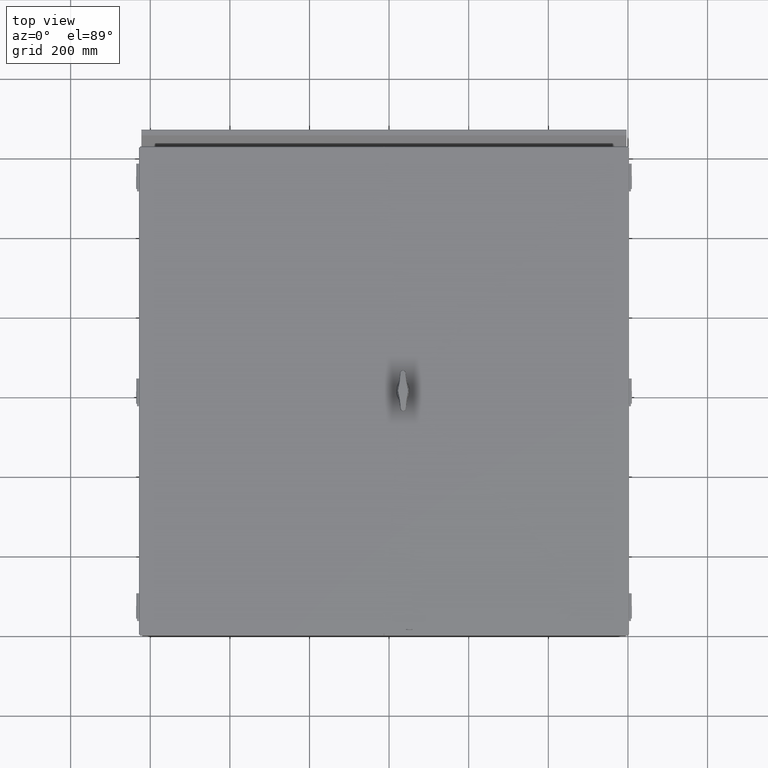
[diagram: clean part render]
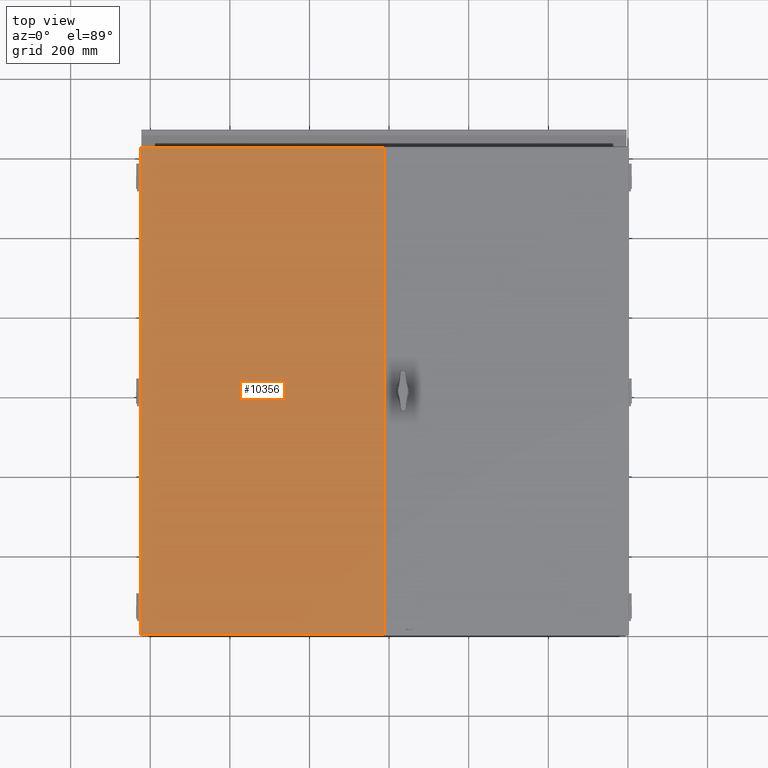
[diagram: same view with one face highlighted and labeled with its STEP entity id]
A machine part, top view. The second image highlights one B-rep face of the part: STEP entity #10356.
In plain terms, the highlighted planar face has unit normal (0, -0, 1).
Its self-contained STEP definition (entity closure, byte-faithful):
#974=PLANE($,#11150);
#1418=FACE_OUTER_BOUND($,#2076,.T.);
#2076=EDGE_LOOP($,(#7802,#7803,#7804,#7805));
#3349=LINE($,#15948,#4145);
#3365=LINE($,#16026,#4161);
#3381=LINE($,#16096,#4177);
#3394=LINE($,#16183,#4190);
#4145=VECTOR($,#12787,24.0938);
#4161=VECTOR($,#12821,24.0938);
#4177=VECTOR($,#12857,48.1251);
#4190=VECTOR($,#12884,48.1251);
#4899=VERTEX_POINT($,#15945);
#4900=VERTEX_POINT($,#15947);
#4911=VERTEX_POINT($,#16017);
#4912=VERTEX_POINT($,#16025);
#5939=EDGE_CURVE($,#4900,#4899,#3349,.T.);
#5959=EDGE_CURVE($,#4912,#4911,#3365,.T.);
#5979=EDGE_CURVE($,#4911,#4900,#3381,.T.);
#5995=EDGE_CURVE($,#4912,#4899,#3394,.T.);
#7802=ORIENTED_EDGE($,*,*,#5939,.T.);
#7803=ORIENTED_EDGE($,*,*,#5995,.F.);
#7804=ORIENTED_EDGE($,*,*,#5959,.T.);
#7805=ORIENTED_EDGE($,*,*,#5979,.T.);
#10356=ADVANCED_FACE($,(#1418),#974,.T.);
#11150=AXIS2_PLACEMENT_3D($,#16182,#12882,#12883);
#12787=DIRECTION($,(1.,2.32210140825624E-016,0.));
#12821=DIRECTION($,(-1.,-1.16105070412812E-016,0.));
#12857=DIRECTION($,(-5.81279279526111E-017,-1.,0.));
#12882=DIRECTION('center_axis',(0.,0.,1.));
#12883=DIRECTION('ref_axis',(1.,0.,0.));
#12884=DIRECTION($,(5.78276453852652E-017,-1.,0.));
#15945=CARTESIAN_POINT('',(12.109375,-24.06255,0.0937));
#15947=CARTESIAN_POINT('',(-11.984425,-24.06255,0.0937));
#15948=CARTESIAN_POINT($,(-5.9922125,-24.06255,0.0937));
#16017=CARTESIAN_POINT('',(-11.984425,24.06255,0.0937));
#16025=CARTESIAN_POINT('',(12.109375,24.06255,0.0937));
#16026=CARTESIAN_POINT($,(6.0546875,24.06255,0.0937));
#16096=CARTESIAN_POINT($,(-11.984425,12.031275,0.0937));
#16182=CARTESIAN_POINT('Origin',(6.99353086378051E-016,-9.5140537961167E-015,
0.0937));
#16183=CARTESIAN_POINT($,(12.109375,24.1875,0.0937));